MODEL slx_1851192fe465
KIND model
CONFIG AbsTol = auto
CONFIG EnableMultiTasking = on
CONFIG FixedStep = 0.004
CONFIG MaxStep = auto
CONFIG MinStep = auto
CONFIG RelTol = 1e-3
CONFIG SampleTimeConstraint = Unconstrained
CONFIG Solver = FixedStepDiscrete
CONFIG SolverName = FixedStepDiscrete
CONFIG StartTime = 0.0
CONFIG StopTime = 1000
BLOCK [SubSystem] PassengerVehicleControl
  Ports = [4, 3]
  RequestExecContextInheritance = off
BLOCK [Inport] PassengerVehicleControl/ActuatorLimitations
  IconDisplay = Port number
  Port = 4
BLOCK [Outport] PassengerVehicleControl/Debug
  IconDisplay = Port number
BLOCK [SubSystem] PassengerVehicleControl/DummyBusDefinition
  Ports = [0, 1]
  RequestExecContextInheritance = off
BLOCK [BusCreator] PassengerVehicleControl/DummyBusDefinition/Bus Creator
  DisplayOption = bar
  InheritFromInputs = on
  Inputs = 3
  Ports = [3, 1]
BLOCK [Constant] PassengerVehicleControl/DummyBusDefinition/Constant
  Value = zeros(4, 1)
BLOCK [Constant] PassengerVehicleControl/DummyBusDefinition/Constant1
  Value = zeros(501, 1)
BLOCK [Constant] PassengerVehicleControl/DummyBusDefinition/Constant2
  Value = TUMHealthStatus.ERROR
BLOCK [Outport] PassengerVehicleControl/DummyBusDefinition/ExternalControllerParameter
  IconDisplay = Port number
BLOCK [Outport] PassengerVehicleControl/TUMModeControl
  IconDisplay = Port number
  Port = 2
BLOCK [Terminator] PassengerVehicleControl/Terminator1
BLOCK [Terminator] PassengerVehicleControl/Terminator2
BLOCK [Terminator] PassengerVehicleControl/Terminator3
BLOCK [Inport] PassengerVehicleControl/TrajectoryPlanning
  IconDisplay = Port number
BLOCK [Outport] PassengerVehicleControl/VehicleControl
  IconDisplay = Port number
  Port = 3
BLOCK [Inport] PassengerVehicleControl/VehicleSensorData
  IconDisplay = Port number
  Port = 2
BLOCK [Inport] PassengerVehicleControl/VehicleSystemStatus
  IconDisplay = Port number
  Port = 3
BLOCK [ModelReference] PassengerVehicleControl/mvdc_vehicle_dynamics_control1
  ModelNameDialog = mvdc_vehicle_dynamics_control
  ModelReferenceVersion = 1.726
  Ports = [5, 6]
BLOCK [SubSystem] ReceiveData
  Ports = [0, 4]
  RequestExecContextInheritance = off
BLOCK [Outport] ReceiveData/ActuatorLimitations
  IconDisplay = Port number
  Port = 4
BLOCK [SubSystem] ReceiveData/DummyBusDefinition1
  Ports = [0, 1]
  RequestExecContextInheritance = off
BLOCK [BusCreator] ReceiveData/DummyBusDefinition1/Bus Creator
  DisplayOption = bar
  InheritFromInputs = off
  Inputs = 5
  OutDataTypeStr = Bus: TrajectoryPlanning
  Ports = [5, 1]
BLOCK [Constant] ReceiveData/DummyBusDefinition1/Constant1
  Value = TUMHealthStatus.OK
BLOCK [Constant] ReceiveData/DummyBusDefinition1/Constant2
  Value = TUMStrategyState.S_OFF
BLOCK [Constant] ReceiveData/DummyBusDefinition1/Constant3
  Value = TUMHealthStatus.OK
BLOCK [SubSystem] ReceiveData/DummyBusDefinition1/EmergencyTrajectory
  Ports = [0, 1]
  Priority = 1000
  RequestExecContextInheritance = off
BLOCK [BusCreator] ReceiveData/DummyBusDefinition1/EmergencyTrajectory/Bus Creator2
  DisplayOption = bar
  InheritFromInputs = off
  Inputs = 12
  OutDataTypeStr = Bus: Trajectory
  Ports = [12, 1]
BLOCK [Constant] ReceiveData/DummyBusDefinition1/EmergencyTrajectory/Constant
  Value = zeros(50, 1, 'single')
BLOCK [Constant] ReceiveData/DummyBusDefinition1/EmergencyTrajectory/Constant1
  Value = zeros(50, 1, 'single')
BLOCK [Constant] ReceiveData/DummyBusDefinition1/EmergencyTrajectory/Constant10
  Value = uint32(0)
BLOCK [Constant] ReceiveData/DummyBusDefinition1/EmergencyTrajectory/Constant11
  Value = uint32(0)
BLOCK [Constant] ReceiveData/DummyBusDefinition1/EmergencyTrajectory/Constant2
  Value = zeros(50, 1, 'single')
BLOCK [Constant] ReceiveData/DummyBusDefinition1/EmergencyTrajectory/Constant3
  Value = zeros(50, 1, 'single')
BLOCK [Constant] ReceiveData/DummyBusDefinition1/EmergencyTrajectory/Constant4
  Value = zeros(50, 1, 'single')
BLOCK [Constant] ReceiveData/DummyBusDefinition1/EmergencyTrajectory/Constant5
  Value = zeros(50, 1, 'single')
BLOCK [Constant] ReceiveData/DummyBusDefinition1/EmergencyTrajectory/Constant6
  Value = zeros(50, 1, 'single')
BLOCK [Constant] ReceiveData/DummyBusDefinition1/EmergencyTrajectory/Constant7
  Value = zeros(50, 1, 'single')
BLOCK [Constant] ReceiveData/DummyBusDefinition1/EmergencyTrajectory/Constant8
  Value = zeros(50, 1, 'single')
BLOCK [Constant] ReceiveData/DummyBusDefinition1/EmergencyTrajectory/Constant9
  Value = 0
BLOCK [Outport] ReceiveData/DummyBusDefinition1/EmergencyTrajectory/TargetTrajectory
  IconDisplay = Port number
  OutDataTypeStr = Bus: Trajectory
BLOCK [SubSystem] ReceiveData/DummyBusDefinition1/PerformanceTrajectory
  Ports = [0, 1]
  Priority = 1000
  RequestExecContextInheritance = off
BLOCK [BusCreator] ReceiveData/DummyBusDefinition1/PerformanceTrajectory/Bus Creator2
  DisplayOption = bar
  InheritFromInputs = off
  Inputs = 12
  OutDataTypeStr = Bus: Trajectory
  Ports = [12, 1]
BLOCK [Constant] ReceiveData/DummyBusDefinition1/PerformanceTrajectory/Constant
  Value = zeros(50, 1, 'single')
BLOCK [Constant] ReceiveData/DummyBusDefinition1/PerformanceTrajectory/Constant1
  Value = zeros(50, 1, 'single')
BLOCK [Constant] ReceiveData/DummyBusDefinition1/PerformanceTrajectory/Constant10
  Value = uint32(0)
BLOCK [Constant] ReceiveData/DummyBusDefinition1/PerformanceTrajectory/Constant11
  Value = uint32(0)
BLOCK [Constant] ReceiveData/DummyBusDefinition1/PerformanceTrajectory/Constant2
  Value = zeros(50, 1, 'single')
BLOCK [Constant] ReceiveData/DummyBusDefinition1/PerformanceTrajectory/Constant3
  Value = zeros(50, 1, 'single')
BLOCK [Constant] ReceiveData/DummyBusDefinition1/PerformanceTrajectory/Constant4
  Value = zeros(50, 1, 'single')
BLOCK [Constant] ReceiveData/DummyBusDefinition1/PerformanceTrajectory/Constant5
  Value = zeros(50, 1, 'single')
BLOCK [Constant] ReceiveData/DummyBusDefinition1/PerformanceTrajectory/Constant6
  Value = zeros(50, 1, 'single')
BLOCK [Constant] ReceiveData/DummyBusDefinition1/PerformanceTrajectory/Constant7
  Value = zeros(50, 1, 'single')
BLOCK [Constant] ReceiveData/DummyBusDefinition1/PerformanceTrajectory/Constant8
  Value = zeros(50, 1, 'single')
BLOCK [Constant] ReceiveData/DummyBusDefinition1/PerformanceTrajectory/Constant9
  Value = 0
BLOCK [Outport] ReceiveData/DummyBusDefinition1/PerformanceTrajectory/TargetTrajectory
  IconDisplay = Port number
  OutDataTypeStr = Bus: Trajectory
BLOCK [Outport] ReceiveData/DummyBusDefinition1/TrajectoryPlanning
  IconDisplay = Port number
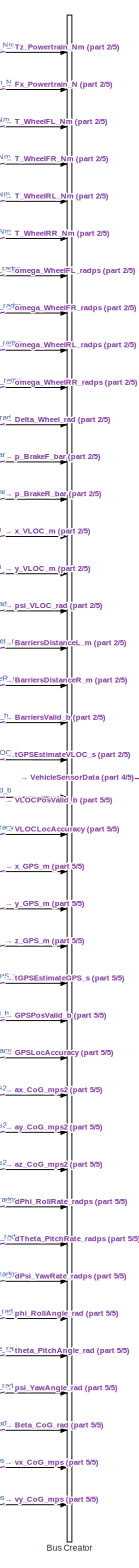
[diagram: ReceiveData/DummyBusDefinition2 - part 1/5, center side, full height]
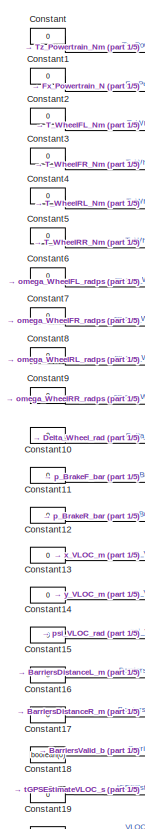
[diagram: ReceiveData/DummyBusDefinition2 - part 2/5, top left region]
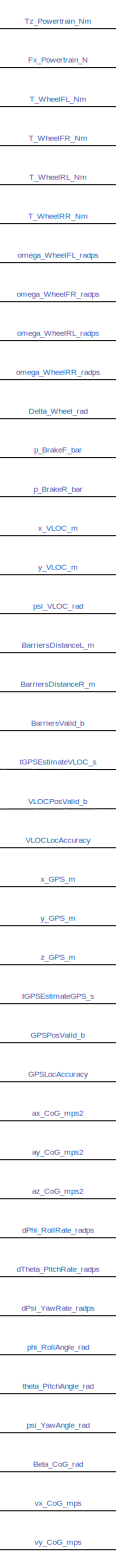
[diagram: ReceiveData/DummyBusDefinition2 - part 3/5, center side, full height]
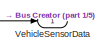
[diagram: ReceiveData/DummyBusDefinition2 - part 4/5, middle right region]
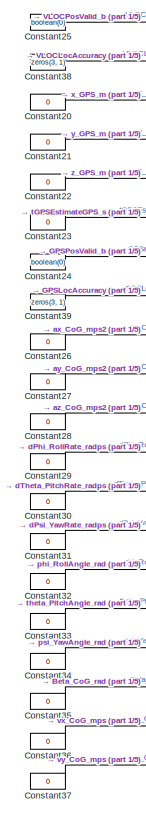
[diagram: ReceiveData/DummyBusDefinition2 - part 5/5, bottom left region]
BLOCK [SubSystem] ReceiveData/DummyBusDefinition2
  Ports = [0, 1]
  RequestExecContextInheritance = off
BLOCK [BusCreator] ReceiveData/DummyBusDefinition2/Bus Creator
  DisplayOption = bar
  InheritFromInputs = on
  Inputs = 40
  Ports = [40, 1]
BLOCK [Constant] ReceiveData/DummyBusDefinition2/Constant
  Value = 0
BLOCK [Constant] ReceiveData/DummyBusDefinition2/Constant1
  Value = 0
BLOCK [Constant] ReceiveData/DummyBusDefinition2/Constant10
  Value = 0
BLOCK [Constant] ReceiveData/DummyBusDefinition2/Constant11
  Value = 0
BLOCK [Constant] ReceiveData/DummyBusDefinition2/Constant12
  Value = 0
BLOCK [Constant] ReceiveData/DummyBusDefinition2/Constant13
  Value = 0
BLOCK [Constant] ReceiveData/DummyBusDefinition2/Constant14
  Value = 0
BLOCK [Constant] ReceiveData/DummyBusDefinition2/Constant15
  Value = 0
BLOCK [Constant] ReceiveData/DummyBusDefinition2/Constant16
  Value = 0
BLOCK [Constant] ReceiveData/DummyBusDefinition2/Constant17
  Value = 0
BLOCK [Constant] ReceiveData/DummyBusDefinition2/Constant18
  Value = boolean(0)
BLOCK [Constant] ReceiveData/DummyBusDefinition2/Constant19
  Value = 0
BLOCK [Constant] ReceiveData/DummyBusDefinition2/Constant2
  Value = 0
BLOCK [Constant] ReceiveData/DummyBusDefinition2/Constant20
  Value = 0
BLOCK [Constant] ReceiveData/DummyBusDefinition2/Constant21
  Value = 0
BLOCK [Constant] ReceiveData/DummyBusDefinition2/Constant22
  Value = 0
BLOCK [Constant] ReceiveData/DummyBusDefinition2/Constant23
  Value = 0
BLOCK [Constant] ReceiveData/DummyBusDefinition2/Constant24
  Value = boolean(0)
BLOCK [Constant] ReceiveData/DummyBusDefinition2/Constant25
  Value = boolean(0)
BLOCK [Constant] ReceiveData/DummyBusDefinition2/Constant26
  Value = 0
BLOCK [Constant] ReceiveData/DummyBusDefinition2/Constant27
  Value = 0
BLOCK [Constant] ReceiveData/DummyBusDefinition2/Constant28
  Value = 0
BLOCK [Constant] ReceiveData/DummyBusDefinition2/Constant29
  Value = 0
BLOCK [Constant] ReceiveData/DummyBusDefinition2/Constant3
  Value = 0
BLOCK [Constant] ReceiveData/DummyBusDefinition2/Constant30
  Value = 0
BLOCK [Constant] ReceiveData/DummyBusDefinition2/Constant31
  Value = 0
BLOCK [Constant] ReceiveData/DummyBusDefinition2/Constant32
  Value = 0
BLOCK [Constant] ReceiveData/DummyBusDefinition2/Constant33
  Value = 0
BLOCK [Constant] ReceiveData/DummyBusDefinition2/Constant34
  Value = 0
BLOCK [Constant] ReceiveData/DummyBusDefinition2/Constant35
  Value = 0
BLOCK [Constant] ReceiveData/DummyBusDefinition2/Constant36
  Value = 0
BLOCK [Constant] ReceiveData/DummyBusDefinition2/Constant37
  Value = 0
BLOCK [Constant] ReceiveData/DummyBusDefinition2/Constant38
  Value = zeros(3, 1)
BLOCK [Constant] ReceiveData/DummyBusDefinition2/Constant39
  Value = zeros(3, 1)
BLOCK [Constant] ReceiveData/DummyBusDefinition2/Constant4
  Value = 0
BLOCK [Constant] ReceiveData/DummyBusDefinition2/Constant5
  Value = 0
BLOCK [Constant] ReceiveData/DummyBusDefinition2/Constant6
  Value = 0
BLOCK [Constant] ReceiveData/DummyBusDefinition2/Constant7
  Value = 0
BLOCK [Constant] ReceiveData/DummyBusDefinition2/Constant8
  Value = 0
BLOCK [Constant] ReceiveData/DummyBusDefinition2/Constant9
  Value = 0
BLOCK [Outport] ReceiveData/DummyBusDefinition2/VehicleSensorData
  IconDisplay = Port number
BLOCK [SubSystem] ReceiveData/DummyBusDefinition3
  Ports = [0, 1]
  RequestExecContextInheritance = off
BLOCK [BusCreator] ReceiveData/DummyBusDefinition3/Bus Creator
  DisplayOption = bar
  InheritFromInputs = on
  Inputs = 4
  Ports = [4, 1]
BLOCK [Constant] ReceiveData/DummyBusDefinition3/Constant
  Value = TUMHealthStatus.ERROR
BLOCK [Constant] ReceiveData/DummyBusDefinition3/Constant1
  Value = TUMHealthStatus.ERROR
BLOCK [Constant] ReceiveData/DummyBusDefinition3/Constant2
  Value = TUMHealthStatus.ERROR
BLOCK [Constant] ReceiveData/DummyBusDefinition3/Constant3
  Value = boolean(0)
BLOCK [Outport] ReceiveData/DummyBusDefinition3/VehicleSystemStatus
  IconDisplay = Port number
BLOCK [SubSystem] ReceiveData/DummyBusDefinition4
  Ports = [0, 1]
  RequestExecContextInheritance = off
BLOCK [Outport] ReceiveData/DummyBusDefinition4/ActuatorLimitations
  IconDisplay = Port number
BLOCK [BusCreator] ReceiveData/DummyBusDefinition4/Bus Creator
  DisplayOption = bar
  InheritFromInputs = on
  Inputs = 4
  Ports = [4, 1]
BLOCK [Constant] ReceiveData/DummyBusDefinition4/Constant
  Value = 0
BLOCK [Constant] ReceiveData/DummyBusDefinition4/Constant1
  Value = 0
BLOCK [Constant] ReceiveData/DummyBusDefinition4/Constant2
  Value = 0
BLOCK [Constant] ReceiveData/DummyBusDefinition4/Constant3
  Value = 0
BLOCK [Outport] ReceiveData/TrajectoryPlanning
  IconDisplay = Port number
BLOCK [Outport] ReceiveData/VehicleSensorData
  IconDisplay = Port number
  Port = 2
BLOCK [Outport] ReceiveData/VehicleSystemStatus
  IconDisplay = Port number
  Port = 3
BLOCK [SubSystem] SendData
  Ports = [2]
  RequestExecContextInheritance = off
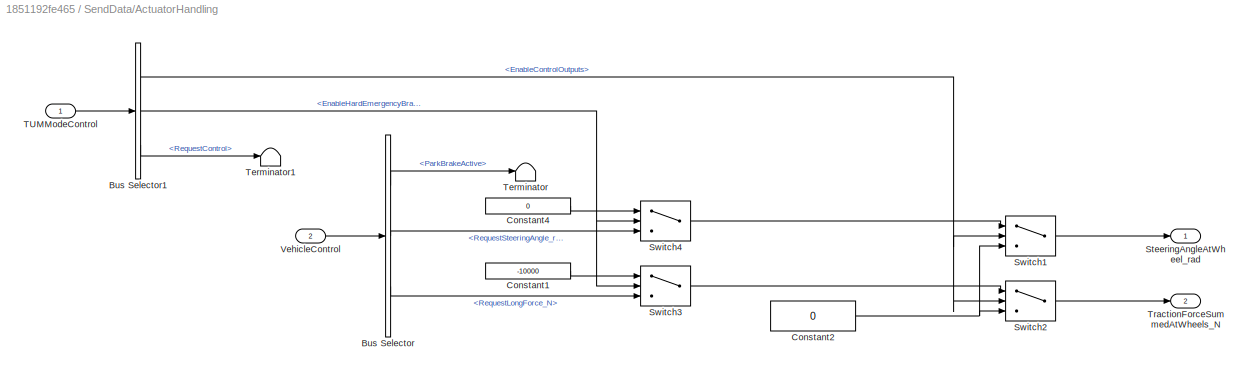
BLOCK [SubSystem] SendData/ActuatorHandling
  Ports = [2, 2]
  RequestExecContextInheritance = off
BLOCK [BusSelector] SendData/ActuatorHandling/Bus Selector
  OutputAsBus = off
  OutputSignals = ParkBrakeActive,RequestSteeringAngle_rad,RequestLongForce_N
  Ports = [1, 3]
BLOCK [BusSelector] SendData/ActuatorHandling/Bus Selector1
  OutputAsBus = off
  OutputSignals = EnableControlOutputs,EnableHardEmergencyBrake,RequestControl
  Ports = [1, 3]
BLOCK [Constant] SendData/ActuatorHandling/Constant1
  Value = -10000
BLOCK [Constant] SendData/ActuatorHandling/Constant2
  Value = 0
BLOCK [Constant] SendData/ActuatorHandling/Constant4
  Value = 0
BLOCK [Outport] SendData/ActuatorHandling/SteeringAngleAtWheel_rad
  IconDisplay = Port number
BLOCK [Switch] SendData/ActuatorHandling/Switch1
  Criteria = u2 > Threshold
  InputSameDT = off
  SaturateOnIntegerOverflow = off
BLOCK [Switch] SendData/ActuatorHandling/Switch2
  Criteria = u2 > Threshold
  InputSameDT = off
  SaturateOnIntegerOverflow = off
BLOCK [Switch] SendData/ActuatorHandling/Switch3
  Criteria = u2 > Threshold
  InputSameDT = off
  SaturateOnIntegerOverflow = off
BLOCK [Switch] SendData/ActuatorHandling/Switch4
  Criteria = u2 > Threshold
  InputSameDT = off
  SaturateOnIntegerOverflow = off
BLOCK [Inport] SendData/ActuatorHandling/TUMModeControl
  IconDisplay = Port number
  OutDataTypeStr = Bus: TUMModeControl
BLOCK [Terminator] SendData/ActuatorHandling/Terminator
BLOCK [Terminator] SendData/ActuatorHandling/Terminator1
BLOCK [Outport] SendData/ActuatorHandling/TractionForceSummedAtWheels_N
  IconDisplay = Port number
  Port = 2
BLOCK [Inport] SendData/ActuatorHandling/VehicleControl
  IconDisplay = Port number
  OutDataTypeStr = Bus: VehicleControl
  Port = 2
BLOCK [Inport] SendData/TUMModeControl
  IconDisplay = Port number
  OutDataTypeStr = Bus: TUMModeControl
BLOCK [Terminator] SendData/Terminator
BLOCK [Terminator] SendData/Terminator1
BLOCK [Inport] SendData/VehicleControl
  IconDisplay = Port number
  OutDataTypeStr = Bus: VehicleControl
  Port = 2
BLOCK [Terminator] Terminator3
ANNOTATION (root): Author: Alexander Wischnewski (<email>) Chair of Automatic Control at TU Munich Description: This model is an example how the vehicle dynamics control software can be used to create an ECU target model. Details can be found in the documentation of the veh_passenger repository.
LINE PassengerVehicleControl/ActuatorLimitations:1 -> PassengerVehicleControl/mvdc_vehicle_dynamics_control1:4
LINE PassengerVehicleControl/DummyBusDefinition/Bus Creator:1 -> PassengerVehicleControl/DummyBusDefinition/ExternalControllerParameter:1
LINE PassengerVehicleControl/DummyBusDefinition/Constant1:1 -> PassengerVehicleControl/DummyBusDefinition/Bus Creator:2
LINE PassengerVehicleControl/DummyBusDefinition/Constant2:1 -> PassengerVehicleControl/DummyBusDefinition/Bus Creator:3
LINE PassengerVehicleControl/DummyBusDefinition/Constant:1 -> PassengerVehicleControl/DummyBusDefinition/Bus Creator:1
LINE PassengerVehicleControl/DummyBusDefinition:1 -> PassengerVehicleControl/mvdc_vehicle_dynamics_control1:5
LINE PassengerVehicleControl/TrajectoryPlanning:1 -> PassengerVehicleControl/mvdc_vehicle_dynamics_control1:1
LINE PassengerVehicleControl/VehicleSensorData:1 -> PassengerVehicleControl/mvdc_vehicle_dynamics_control1:2
LINE PassengerVehicleControl/VehicleSystemStatus:1 -> PassengerVehicleControl/mvdc_vehicle_dynamics_control1:3
LINE PassengerVehicleControl/mvdc_vehicle_dynamics_control1:1 -> PassengerVehicleControl/Debug:1
LINE PassengerVehicleControl/mvdc_vehicle_dynamics_control1:2 -> PassengerVehicleControl/Terminator3:1
LINE PassengerVehicleControl/mvdc_vehicle_dynamics_control1:3 -> PassengerVehicleControl/Terminator2:1
LINE PassengerVehicleControl/mvdc_vehicle_dynamics_control1:4 -> PassengerVehicleControl/TUMModeControl:1
LINE PassengerVehicleControl/mvdc_vehicle_dynamics_control1:5 -> PassengerVehicleControl/VehicleControl:1
LINE PassengerVehicleControl/mvdc_vehicle_dynamics_control1:6 -> PassengerVehicleControl/Terminator1:1
LINE PassengerVehicleControl:1 -> Terminator3:1
LINE PassengerVehicleControl:2 -> SendData:1
LINE PassengerVehicleControl:3 -> SendData:2
LINE ReceiveData/DummyBusDefinition1/Bus Creator:1 -> ReceiveData/DummyBusDefinition1/TrajectoryPlanning:1
LINE ReceiveData/DummyBusDefinition1/Constant1:1 -> ReceiveData/DummyBusDefinition1/Bus Creator:2
LINE ReceiveData/DummyBusDefinition1/Constant2:1 -> ReceiveData/DummyBusDefinition1/Bus Creator:1
LINE ReceiveData/DummyBusDefinition1/Constant3:1 -> ReceiveData/DummyBusDefinition1/Bus Creator:3
LINE ReceiveData/DummyBusDefinition1/EmergencyTrajectory/Bus Creator2:1 -> ReceiveData/DummyBusDefinition1/EmergencyTrajectory/TargetTrajectory:1
LINE ReceiveData/DummyBusDefinition1/EmergencyTrajectory/Constant10:1 -> ReceiveData/DummyBusDefinition1/EmergencyTrajectory/Bus Creator2:2
LINE ReceiveData/DummyBusDefinition1/EmergencyTrajectory/Constant11:1 -> ReceiveData/DummyBusDefinition1/EmergencyTrajectory/Bus Creator2:1
LINE ReceiveData/DummyBusDefinition1/EmergencyTrajectory/Constant1:1 -> ReceiveData/DummyBusDefinition1/EmergencyTrajectory/Bus Creator2:12
LINE ReceiveData/DummyBusDefinition1/EmergencyTrajectory/Constant2:1 -> ReceiveData/DummyBusDefinition1/EmergencyTrajectory/Bus Creator2:10
LINE ReceiveData/DummyBusDefinition1/EmergencyTrajectory/Constant3:1 -> ReceiveData/DummyBusDefinition1/EmergencyTrajectory/Bus Creator2:9
LINE ReceiveData/DummyBusDefinition1/EmergencyTrajectory/Constant4:1 -> ReceiveData/DummyBusDefinition1/EmergencyTrajectory/Bus Creator2:8
LINE ReceiveData/DummyBusDefinition1/EmergencyTrajectory/Constant5:1 -> ReceiveData/DummyBusDefinition1/EmergencyTrajectory/Bus Creator2:7
LINE ReceiveData/DummyBusDefinition1/EmergencyTrajectory/Constant6:1 -> ReceiveData/DummyBusDefinition1/EmergencyTrajectory/Bus Creator2:6
LINE ReceiveData/DummyBusDefinition1/EmergencyTrajectory/Constant7:1 -> ReceiveData/DummyBusDefinition1/EmergencyTrajectory/Bus Creator2:5
LINE ReceiveData/DummyBusDefinition1/EmergencyTrajectory/Constant8:1 -> ReceiveData/DummyBusDefinition1/EmergencyTrajectory/Bus Creator2:4
LINE ReceiveData/DummyBusDefinition1/EmergencyTrajectory/Constant9:1 -> ReceiveData/DummyBusDefinition1/EmergencyTrajectory/Bus Creator2:3
LINE ReceiveData/DummyBusDefinition1/EmergencyTrajectory/Constant:1 -> ReceiveData/DummyBusDefinition1/EmergencyTrajectory/Bus Creator2:11
LINE ReceiveData/DummyBusDefinition1/EmergencyTrajectory:1 -> ReceiveData/DummyBusDefinition1/Bus Creator:4
LINE ReceiveData/DummyBusDefinition1/PerformanceTrajectory/Bus Creator2:1 -> ReceiveData/DummyBusDefinition1/PerformanceTrajectory/TargetTrajectory:1
LINE ReceiveData/DummyBusDefinition1/PerformanceTrajectory/Constant10:1 -> ReceiveData/DummyBusDefinition1/PerformanceTrajectory/Bus Creator2:1
LINE ReceiveData/DummyBusDefinition1/PerformanceTrajectory/Constant11:1 -> ReceiveData/DummyBusDefinition1/PerformanceTrajectory/Bus Creator2:2
LINE ReceiveData/DummyBusDefinition1/PerformanceTrajectory/Constant1:1 -> ReceiveData/DummyBusDefinition1/PerformanceTrajectory/Bus Creator2:12
LINE ReceiveData/DummyBusDefinition1/PerformanceTrajectory/Constant2:1 -> ReceiveData/DummyBusDefinition1/PerformanceTrajectory/Bus Creator2:10
LINE ReceiveData/DummyBusDefinition1/PerformanceTrajectory/Constant3:1 -> ReceiveData/DummyBusDefinition1/PerformanceTrajectory/Bus Creator2:9
LINE ReceiveData/DummyBusDefinition1/PerformanceTrajectory/Constant4:1 -> ReceiveData/DummyBusDefinition1/PerformanceTrajectory/Bus Creator2:8
LINE ReceiveData/DummyBusDefinition1/PerformanceTrajectory/Constant5:1 -> ReceiveData/DummyBusDefinition1/PerformanceTrajectory/Bus Creator2:7
LINE ReceiveData/DummyBusDefinition1/PerformanceTrajectory/Constant6:1 -> ReceiveData/DummyBusDefinition1/PerformanceTrajectory/Bus Creator2:6
LINE ReceiveData/DummyBusDefinition1/PerformanceTrajectory/Constant7:1 -> ReceiveData/DummyBusDefinition1/PerformanceTrajectory/Bus Creator2:5
LINE ReceiveData/DummyBusDefinition1/PerformanceTrajectory/Constant8:1 -> ReceiveData/DummyBusDefinition1/PerformanceTrajectory/Bus Creator2:4
LINE ReceiveData/DummyBusDefinition1/PerformanceTrajectory/Constant9:1 -> ReceiveData/DummyBusDefinition1/PerformanceTrajectory/Bus Creator2:3
LINE ReceiveData/DummyBusDefinition1/PerformanceTrajectory/Constant:1 -> ReceiveData/DummyBusDefinition1/PerformanceTrajectory/Bus Creator2:11
LINE ReceiveData/DummyBusDefinition1/PerformanceTrajectory:1 -> ReceiveData/DummyBusDefinition1/Bus Creator:5
LINE ReceiveData/DummyBusDefinition1:1 -> ReceiveData/TrajectoryPlanning:1
LINE ReceiveData/DummyBusDefinition2/Bus Creator:1 -> ReceiveData/DummyBusDefinition2/VehicleSensorData:1
LINE ReceiveData/DummyBusDefinition2/Constant10:1 -> ReceiveData/DummyBusDefinition2/Bus Creator:11
LINE ReceiveData/DummyBusDefinition2/Constant11:1 -> ReceiveData/DummyBusDefinition2/Bus Creator:12
LINE ReceiveData/DummyBusDefinition2/Constant12:1 -> ReceiveData/DummyBusDefinition2/Bus Creator:13
LINE ReceiveData/DummyBusDefinition2/Constant13:1 -> ReceiveData/DummyBusDefinition2/Bus Creator:14
LINE ReceiveData/DummyBusDefinition2/Constant14:1 -> ReceiveData/DummyBusDefinition2/Bus Creator:15
LINE ReceiveData/DummyBusDefinition2/Constant15:1 -> ReceiveData/DummyBusDefinition2/Bus Creator:16
LINE ReceiveData/DummyBusDefinition2/Constant16:1 -> ReceiveData/DummyBusDefinition2/Bus Creator:17
LINE ReceiveData/DummyBusDefinition2/Constant17:1 -> ReceiveData/DummyBusDefinition2/Bus Creator:18
LINE ReceiveData/DummyBusDefinition2/Constant18:1 -> ReceiveData/DummyBusDefinition2/Bus Creator:19
LINE ReceiveData/DummyBusDefinition2/Constant19:1 -> ReceiveData/DummyBusDefinition2/Bus Creator:20
LINE ReceiveData/DummyBusDefinition2/Constant1:1 -> ReceiveData/DummyBusDefinition2/Bus Creator:2
LINE ReceiveData/DummyBusDefinition2/Constant20:1 -> ReceiveData/DummyBusDefinition2/Bus Creator:23
LINE ReceiveData/DummyBusDefinition2/Constant21:1 -> ReceiveData/DummyBusDefinition2/Bus Creator:24
LINE ReceiveData/DummyBusDefinition2/Constant22:1 -> ReceiveData/DummyBusDefinition2/Bus Creator:25
LINE ReceiveData/DummyBusDefinition2/Constant23:1 -> ReceiveData/DummyBusDefinition2/Bus Creator:26
LINE ReceiveData/DummyBusDefinition2/Constant24:1 -> ReceiveData/DummyBusDefinition2/Bus Creator:27
LINE ReceiveData/DummyBusDefinition2/Constant25:1 -> ReceiveData/DummyBusDefinition2/Bus Creator:21
LINE ReceiveData/DummyBusDefinition2/Constant26:1 -> ReceiveData/DummyBusDefinition2/Bus Creator:29
LINE ReceiveData/DummyBusDefinition2/Constant27:1 -> ReceiveData/DummyBusDefinition2/Bus Creator:30
LINE ReceiveData/DummyBusDefinition2/Constant28:1 -> ReceiveData/DummyBusDefinition2/Bus Creator:31
LINE ReceiveData/DummyBusDefinition2/Constant29:1 -> ReceiveData/DummyBusDefinition2/Bus Creator:32
LINE ReceiveData/DummyBusDefinition2/Constant2:1 -> ReceiveData/DummyBusDefinition2/Bus Creator:3
LINE ReceiveData/DummyBusDefinition2/Constant30:1 -> ReceiveData/DummyBusDefinition2/Bus Creator:33
LINE ReceiveData/DummyBusDefinition2/Constant31:1 -> ReceiveData/DummyBusDefinition2/Bus Creator:34
LINE ReceiveData/DummyBusDefinition2/Constant32:1 -> ReceiveData/DummyBusDefinition2/Bus Creator:35
LINE ReceiveData/DummyBusDefinition2/Constant33:1 -> ReceiveData/DummyBusDefinition2/Bus Creator:36
LINE ReceiveData/DummyBusDefinition2/Constant34:1 -> ReceiveData/DummyBusDefinition2/Bus Creator:37
LINE ReceiveData/DummyBusDefinition2/Constant35:1 -> ReceiveData/DummyBusDefinition2/Bus Creator:38
LINE ReceiveData/DummyBusDefinition2/Constant36:1 -> ReceiveData/DummyBusDefinition2/Bus Creator:39
LINE ReceiveData/DummyBusDefinition2/Constant37:1 -> ReceiveData/DummyBusDefinition2/Bus Creator:40
LINE ReceiveData/DummyBusDefinition2/Constant38:1 -> ReceiveData/DummyBusDefinition2/Bus Creator:22
LINE ReceiveData/DummyBusDefinition2/Constant39:1 -> ReceiveData/DummyBusDefinition2/Bus Creator:28
LINE ReceiveData/DummyBusDefinition2/Constant3:1 -> ReceiveData/DummyBusDefinition2/Bus Creator:4
LINE ReceiveData/DummyBusDefinition2/Constant4:1 -> ReceiveData/DummyBusDefinition2/Bus Creator:5
LINE ReceiveData/DummyBusDefinition2/Constant5:1 -> ReceiveData/DummyBusDefinition2/Bus Creator:6
LINE ReceiveData/DummyBusDefinition2/Constant6:1 -> ReceiveData/DummyBusDefinition2/Bus Creator:7
LINE ReceiveData/DummyBusDefinition2/Constant7:1 -> ReceiveData/DummyBusDefinition2/Bus Creator:8
LINE ReceiveData/DummyBusDefinition2/Constant8:1 -> ReceiveData/DummyBusDefinition2/Bus Creator:9
LINE ReceiveData/DummyBusDefinition2/Constant9:1 -> ReceiveData/DummyBusDefinition2/Bus Creator:10
LINE ReceiveData/DummyBusDefinition2/Constant:1 -> ReceiveData/DummyBusDefinition2/Bus Creator:1
LINE ReceiveData/DummyBusDefinition2:1 -> ReceiveData/VehicleSensorData:1
LINE ReceiveData/DummyBusDefinition3/Bus Creator:1 -> ReceiveData/DummyBusDefinition3/VehicleSystemStatus:1
LINE ReceiveData/DummyBusDefinition3/Constant1:1 -> ReceiveData/DummyBusDefinition3/Bus Creator:2
LINE ReceiveData/DummyBusDefinition3/Constant2:1 -> ReceiveData/DummyBusDefinition3/Bus Creator:3
LINE ReceiveData/DummyBusDefinition3/Constant3:1 -> ReceiveData/DummyBusDefinition3/Bus Creator:4
LINE ReceiveData/DummyBusDefinition3/Constant:1 -> ReceiveData/DummyBusDefinition3/Bus Creator:1
LINE ReceiveData/DummyBusDefinition3:1 -> ReceiveData/VehicleSystemStatus:1
LINE ReceiveData/DummyBusDefinition4/Bus Creator:1 -> ReceiveData/DummyBusDefinition4/ActuatorLimitations:1
LINE ReceiveData/DummyBusDefinition4/Constant1:1 -> ReceiveData/DummyBusDefinition4/Bus Creator:2
LINE ReceiveData/DummyBusDefinition4/Constant2:1 -> ReceiveData/DummyBusDefinition4/Bus Creator:3
LINE ReceiveData/DummyBusDefinition4/Constant3:1 -> ReceiveData/DummyBusDefinition4/Bus Creator:4
LINE ReceiveData/DummyBusDefinition4/Constant:1 -> ReceiveData/DummyBusDefinition4/Bus Creator:1
LINE ReceiveData/DummyBusDefinition4:1 -> ReceiveData/ActuatorLimitations:1
LINE ReceiveData:1 -> PassengerVehicleControl:1
LINE ReceiveData:2 -> PassengerVehicleControl:2
LINE ReceiveData:3 -> PassengerVehicleControl:3
LINE ReceiveData:4 -> PassengerVehicleControl:4
NET SendData/ActuatorHandling/Bus Selector1:1 -> SendData/ActuatorHandling/Switch1:2, SendData/ActuatorHandling/Switch2:2
NET SendData/ActuatorHandling/Bus Selector1:2 -> SendData/ActuatorHandling/Switch3:2, SendData/ActuatorHandling/Switch4:2
LINE SendData/ActuatorHandling/Bus Selector1:3 -> SendData/ActuatorHandling/Terminator1:1
LINE SendData/ActuatorHandling/Bus Selector:1 -> SendData/ActuatorHandling/Terminator:1
LINE SendData/ActuatorHandling/Bus Selector:2 -> SendData/ActuatorHandling/Switch4:3
LINE SendData/ActuatorHandling/Bus Selector:3 -> SendData/ActuatorHandling/Switch3:3
LINE SendData/ActuatorHandling/Constant1:1 -> SendData/ActuatorHandling/Switch3:1
NET SendData/ActuatorHandling/Constant2:1 -> SendData/ActuatorHandling/Switch1:3, SendData/ActuatorHandling/Switch2:3
LINE SendData/ActuatorHandling/Constant4:1 -> SendData/ActuatorHandling/Switch4:1
LINE SendData/ActuatorHandling/Switch1:1 -> SendData/ActuatorHandling/SteeringAngleAtWheel_rad:1
LINE SendData/ActuatorHandling/Switch2:1 -> SendData/ActuatorHandling/TractionForceSummedAtWheels_N:1
LINE SendData/ActuatorHandling/Switch3:1 -> SendData/ActuatorHandling/Switch2:1
LINE SendData/ActuatorHandling/Switch4:1 -> SendData/ActuatorHandling/Switch1:1
LINE SendData/ActuatorHandling/TUMModeControl:1 -> SendData/ActuatorHandling/Bus Selector1:1
LINE SendData/ActuatorHandling/VehicleControl:1 -> SendData/ActuatorHandling/Bus Selector:1
LINE SendData/ActuatorHandling:1 -> SendData/Terminator:1
LINE SendData/ActuatorHandling:2 -> SendData/Terminator1:1
LINE SendData/TUMModeControl:1 -> SendData/ActuatorHandling:1
LINE SendData/VehicleControl:1 -> SendData/ActuatorHandling:2
note: NET lines group one-source signal fan-out (src -> all destinations, sorted); 1:1 wires keep LINE
